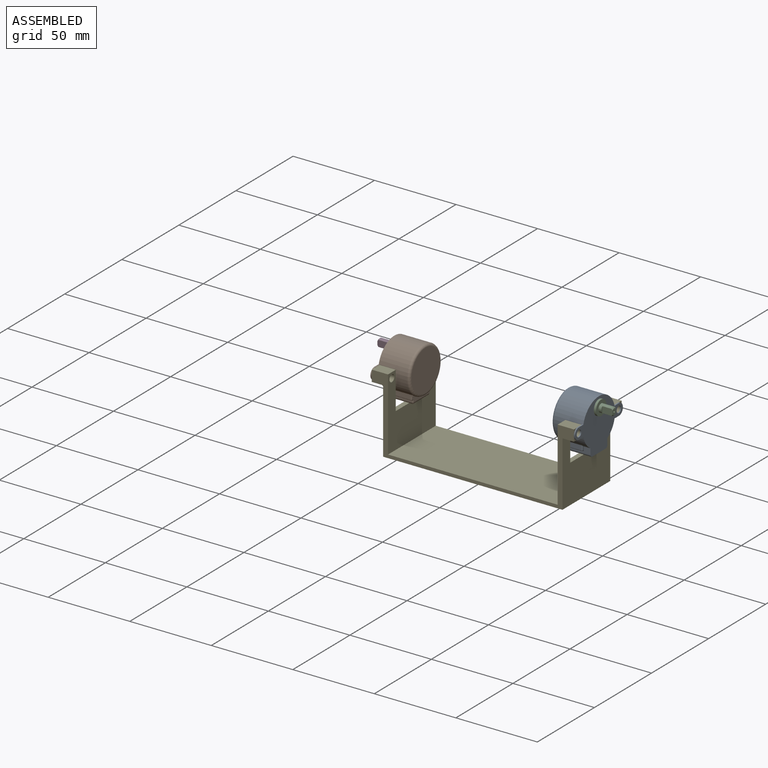
[diagram: assembled view]
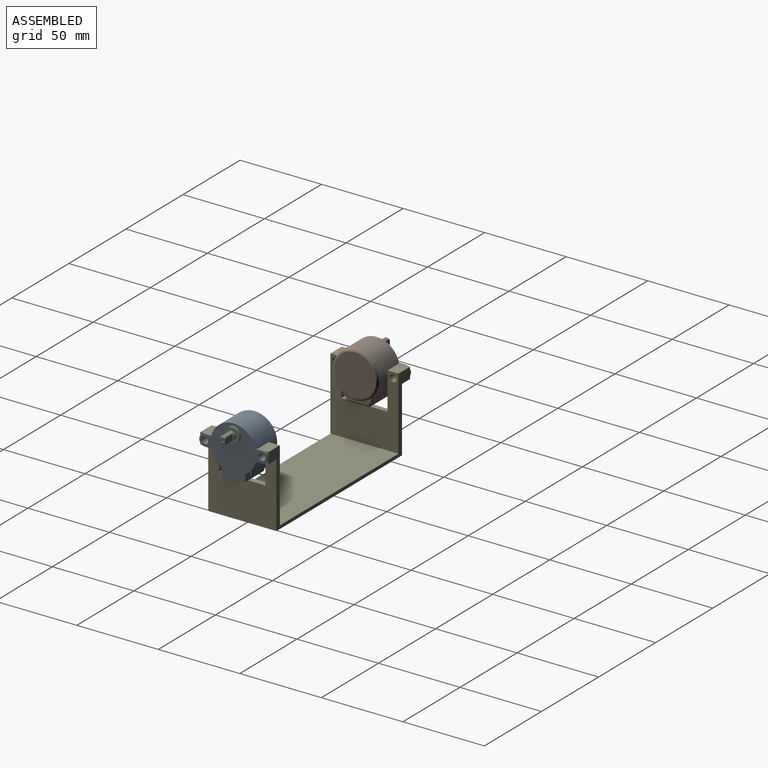
[diagram: assembled view, second angle]
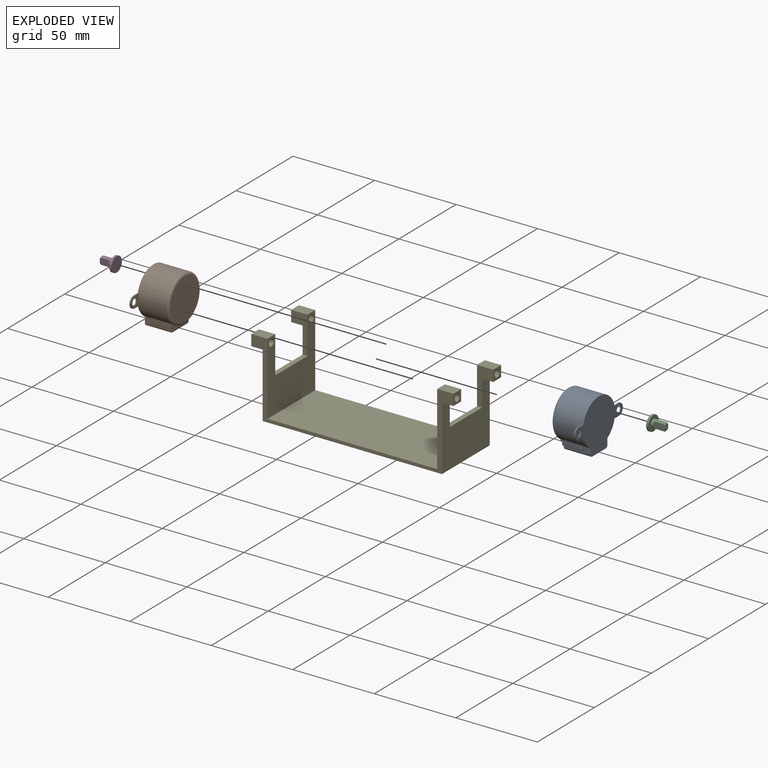
[diagram: exploded view]
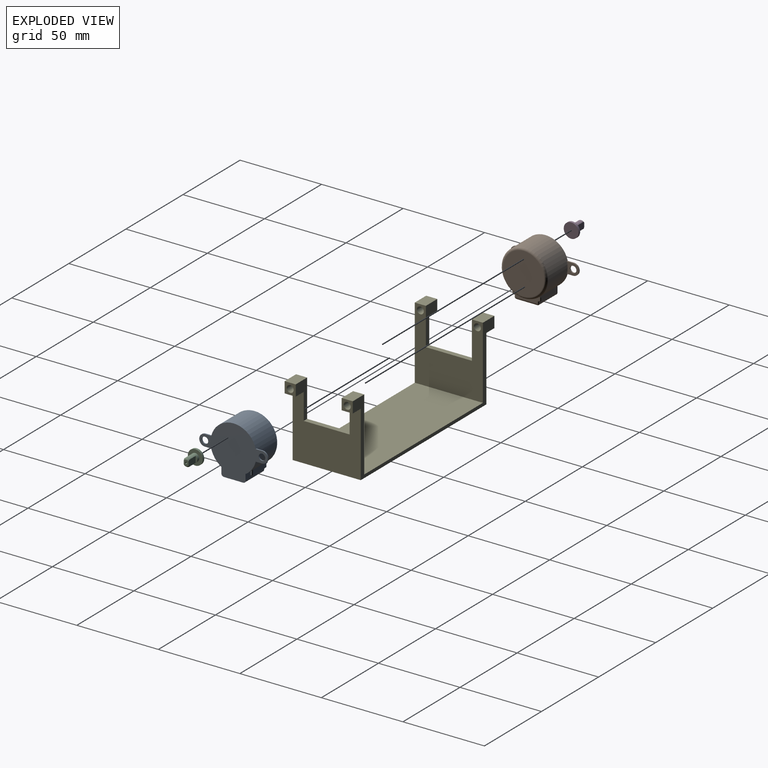
[diagram: exploded view, second angle]
ASSEMBLY  parts=5 mates=4
PART A: 56 faces, bbox 32.5x42x19.2 mm
  f0: plane 15.2x11.8mm, normal (1,0,0), area 169.8mm2, adj f14,f29,f30,f31,f51,f52,f53,f54
  f1: cylinder r=14.1mm len=28.2mm, axis (0,0,1), area 1244mm2, adj f2,f3,f4,f5,f6,f7,f8,f13
  f2: plane 16.5x3.36mm, normal (0,0,-1), area 25.3mm2, adj f1,f23,f24,f26,f27,f30,f37,f39
  f3: plane 16.2x3.7mm, normal (0,1,0), area 27.3mm2, adj f1,f14,f17,f18,f29,f33,f40
  f4: plane 3.84x0.75mm, normal (-1,0,0), area 2.9mm2, adj f1,f10,f13,f14
  f5: plane 3.84x0.75mm, normal (-1,0,0), area 2.9mm2, adj f1,f8,f9,f14
  f6: plane 3.84x0.75mm, normal (1,0,0), area 2.9mm2, adj f1,f10,f13,f14
  f7: plane 3.84x0.75mm, normal (1,0,0), area 2.9mm2, adj f1,f8,f9,f14
  f8: plane 7.34x7mm, normal (0,0,-1), area 31.5mm2, adj f1,f5,f7,f9,f12
  f9: cylinder r=3.5mm len=7mm, axis (0,0,1), area 8.2mm2, adj f5,f7,f8,f14
  f10: cylinder r=3.5mm len=7mm, axis (0,0,1), area 8.2mm2, adj f4,f6,f13,f14
  f11: cylinder r=2mm len=4mm, axis (0,0,1), area 9.4mm2, adj f13,f14
  f12: cylinder r=2mm len=4mm, axis (0,0,1), area 9.4mm2, adj f8,f14
  f13: plane 7.34x7mm, normal (0,0,-1), area 31.5mm2, adj f1,f4,f6,f10,f11
  f14: plane 42x31.3mm, normal (0,0,1), area 742.5mm2, adj f0,f1,f3,f4,f5,f6,f7,f9
  f15: plane 25.2x25.2mm, normal (0,0,-1), area 498.8mm2, adj f32
  f16: plane 16.2x3.7mm, normal (0,-1,0), area 27.3mm2, adj f1,f14,f20,f21,f31,f43,f49
  f17: plane 2.73x0.85mm, normal (0,0,1), area 1.9mm2, adj f1,f3,f33,f34
  f18: plane 11.6x1.02mm, normal (0.94,0.35,0), area 12.7mm2, adj f3,f33,f36,f39
  f19: plane 12.85x2.8mm, normal (0,1,0), area 33.6mm2, adj f1,f24,f25,f34,f36,f37
  f20: plane 2.73x0.85mm, normal (0,0,1), area 1.9mm2, adj f1,f16,f42,f43
  f21: plane 11.6x1.02mm, normal (0.94,-0.35,0), area 12.7mm2, adj f16,f43,f46,f48
  f22: plane 12.85x2.8mm, normal (0,-1,0), area 33.6mm2, adj f1,f26,f28,f42,f45,f46
  f23: plane 0.75x0.75mm, normal (0,-1,0), area 0.6mm2, adj f1,f2,f24,f25
  f24: cylinder r=14.85mm len=7.25mm, axis (0,0,1), area 6mm2, adj f2,f19,f23,f25,f37
  f25: plane 7.25x3.71mm, normal (0,0,-1), area 5.9mm2, adj f1,f19,f23,f24
  f26: cylinder r=14.85mm len=7.25mm, axis (0,0,1), area 6mm2, adj f2,f22,f27,f28,f45
  f27: plane 0.75x0.75mm, normal (0,1,0), area 0.6mm2, adj f1,f2,f26,f28
  f28: plane 7.25x3.71mm, normal (0,0,-1), area 5.9mm2, adj f1,f22,f26,f27
  f29: cylinder r=1.5mm len=16.2mm, axis (0,0,-1), area 37.3mm2, adj f0,f3,f14,f41
  f30: cylinder r=1.5mm len=13.8mm, axis (0,-1,0), area 30.8mm2, adj f0,f2,f41,f50
  f31: cylinder r=1.5mm len=16.2mm, axis (0,0,1), area 37.3mm2, adj f0,f14,f16,f50
  f32: torus R=12.6mm, axis (0,0,-1), area 200.7mm2, adj f1,f15
  f33: cylinder r=0.5mm len=1.2mm, axis (-0.35,0.94,0), area 0.8mm2, adj f3,f17,f18,f35
  f34: cylinder r=0.5mm len=2.8mm, axis (-1,0,0), area 2.1mm2, adj f1,f17,f19,f35
  f35: sphere r=0.5mm, area 0.3mm2, adj f33,f34,f36
  f36: cylinder r=0.5mm len=11.6mm, axis (0,0,-1), area 7.1mm2, adj f18,f19,f35,f38
  f37: cylinder r=0.5mm len=1.86mm, axis (-1,0,0), area 1.4mm2, adj f2,f19,f24,f38
  f38: sphere r=0.5mm, area 0.3mm2, adj f36,f37,f39
  f39: cylinder r=0.5mm len=1.52mm, axis (-0.35,0.94,0), area 1mm2, adj f2,f18,f38,f40
  f40: cylinder r=0.5mm len=1.35mm, axis (1,0,0), area 0.9mm2, adj f2,f3,f39,f41
  f41: bspline ~1.76x1.5mm, area 1.3mm2, adj f29,f30,f40
  f42: cylinder r=0.5mm len=2.8mm, axis (1,0,0), area 2.1mm2, adj f1,f20,f22,f44
  f43: cylinder r=0.5mm len=1.2mm, axis (0.35,0.94,0), area 0.8mm2, adj f16,f20,f21,f44
  f44: sphere r=0.5mm, area 0.3mm2, adj f42,f43,f46
  f45: cylinder r=0.5mm len=1.86mm, axis (1,0,0), area 1.4mm2, adj f2,f22,f26,f47
  f46: cylinder r=0.5mm len=11.6mm, axis (0,0,-1), area 7.1mm2, adj f21,f22,f44,f47
  f47: sphere r=0.5mm, area 0.3mm2, adj f45,f46,f48
  f48: cylinder r=0.5mm len=1.52mm, axis (0.35,0.94,0), area 1mm2, adj f2,f21,f47,f49
  f49: cylinder r=0.5mm len=1.35mm, axis (-1,0,0), area 0.9mm2, adj f2,f16,f48,f50
  f50: bspline ~1.76x1.5mm, area 1.3mm2, adj f30,f31,f49
  f51: plane 6.3x1mm, normal (0,0,1), area 6.3mm2, adj f0,f52,f54,f55
  f52: cylinder r=0.65mm len=1.3mm, axis (1,0,0), area 2mm2, adj f0,f51,f53,f55
  f53: plane 6.3x1mm, normal (0,0,-1), area 6.3mm2, adj f0,f52,f54,f55
  f54: cylinder r=0.65mm len=1.3mm, axis (1,0,0), area 2mm2, adj f0,f51,f53,f55
  f55: plane 7.6x1.3mm, normal (1,0,0), area 9.5mm2, adj f51,f52,f53,f54
PART B: same geometry as A
PART C: 12 faces, bbox 9.2x9.2x9.5 mm
  f0: cylinder r=2.45mm len=7.4mm, axis (0,0,-1), area 63.9mm2, adj f1,f2,f4,f8,f9,f10,f11
  f1: cone r=1.85mm half-angle=45deg, axis (0,0,-1), area 2.9mm2, adj f0,f3,f9,f11
  f2: cone r=1.85mm half-angle=45deg, axis (0,0,-1), area 2.9mm2, adj f0,f3,f9,f11
  f3: plane 3.7x3mm, normal (0,0,1), area 8.6mm2, adj f1,f2,f5,f9,f11
  f4: plane 9.1x9.1mm, normal (0,0,1), area 46.2mm2, adj f0,f7
  f5: cone r=0.6mm half-angle=45deg, axis (0,0,1), area 1.6mm2, adj f3
  f6: plane 9.1x9.1mm, normal (0,0,-1), area 65mm2, adj f7
  f7: cylinder r=4.55mm len=9.1mm, axis (0,0,-1), area 38.6mm2, adj f4,f6
  f8: plane 3.87x0.95mm, normal (0,0,1), area 2.6mm2, adj f0,f9
  f9: plane 6.31x3.98mm, normal (0,-1,0), area 23.5mm2, adj f0,f1,f2,f3,f8
  f10: plane 3.87x0.95mm, normal (0,0,1), area 2.6mm2, adj f0,f11
  f11: plane 6.31x3.98mm, normal (0,1,0), area 23.5mm2, adj f0,f1,f2,f3,f10
PART D: same geometry as C
PART E: 30 faces, bbox 124x41.8x46.4 mm
  f0: plane 44.4x41.8mm, normal (1,0,0), area 1181.1mm2, adj f1,f2,f4,f5,f8,f9,f10,f12
  f1: plane 10x6.8mm, normal (0,0,1), area 68mm2, adj f0,f2,f5,f6
  f2: plane 124x46.4mm, normal (0,-1,0), area 581.6mm2, adj f0,f1,f3,f6,f7,f14,f16,f17
  f3: plane 7x6.8mm, normal (0,0,-1), area 47.6mm2, adj f2,f5,f6,f7
  f4: cylinder r=2.15mm len=10mm, axis (-1,0,0), area 135.1mm2, adj f0,f6
  f5: plane 22.9x10mm, normal (0,1,0), area 116.3mm2, adj f0,f1,f3,f6,f7,f15
  f6: plane 6.8x6.8mm, normal (-1,0,0), area 31.7mm2, adj f1,f2,f3,f4,f5
  f7: plane 41.8x39.6mm, normal (-1,0,0), area 1201.3mm2, adj f2,f3,f5,f8,f10,f11,f14,f15
  f8: plane 124x46.4mm, normal (0,1,0), area 581.6mm2, adj f0,f7,f9,f11,f13,f14,f16,f17
  f9: plane 10x6.8mm, normal (0,0,1), area 68mm2, adj f0,f8,f10,f13
  f10: plane 22.9x10mm, normal (0,-1,0), area 116.3mm2, adj f0,f7,f9,f11,f13,f15
  f11: plane 7x6.8mm, normal (0,0,-1), area 47.6mm2, adj f7,f8,f10,f13
  f12: cylinder r=2.15mm len=10mm, axis (-1,0,0), area 135.1mm2, adj f0,f13
  f13: plane 6.8x6.8mm, normal (-1,0,0), area 31.7mm2, adj f8,f9,f10,f11,f12
  f14: plane 110x41.8mm, normal (0,0,-1), area 4598mm2, adj f2,f7,f8,f23
  f15: plane 28.2x3mm, normal (0,0,1), area 84.6mm2, adj f0,f5,f7,f10
  f16: plane 104x41.8mm, normal (0,0,1), area 4347.2mm2, adj f0,f2,f8,f17
  f17: plane 44.4x41.8mm, normal (-1,0,0), area 1181.1mm2, adj f2,f8,f16,f18,f20,f21,f24,f25
  f18: plane 10x6.8mm, normal (0,0,1), area 68mm2, adj f2,f17,f21,f22
  f19: plane 7x6.8mm, normal (0,0,-1), area 47.6mm2, adj f2,f21,f22,f23
  f20: cylinder r=2.15mm len=10mm, axis (1,0,0), area 135.1mm2, adj f17,f22
  f21: plane 22.9x10mm, normal (0,1,0), area 116.3mm2, adj f17,f18,f19,f22,f23,f29
  f22: plane 6.8x6.8mm, normal (1,0,0), area 31.7mm2, adj f2,f18,f19,f20,f21
  f23: plane 41.8x39.6mm, normal (1,0,0), area 1201.3mm2, adj f2,f8,f14,f19,f21,f25,f26,f29
  f24: plane 10x6.8mm, normal (0,0,1), area 68mm2, adj f8,f17,f25,f28
  f25: plane 22.9x10mm, normal (0,-1,0), area 116.3mm2, adj f17,f23,f24,f26,f28,f29
  f26: plane 7x6.8mm, normal (0,0,-1), area 47.6mm2, adj f8,f23,f25,f28
  f27: cylinder r=2.15mm len=10mm, axis (1,0,0), area 135.1mm2, adj f17,f28
  f28: plane 6.8x6.8mm, normal (1,0,0), area 31.7mm2, adj f8,f24,f25,f26,f27
  f29: plane 28.2x3mm, normal (0,0,1), area 84.6mm2, adj f17,f21,f23,f25
PLACE A rot(axis=(0,1,0),90deg) t=(62.75,0,50.85)mm
PLACE B rot(axis=(-0.71,0,0.71),180deg) t=(-62.75,0,50.85)mm
PLACE C rot(axis=(0,1,0),90deg) t=(62.75,0,51)mm
PLACE D rot(axis=(-0.71,0,0.71),180deg) t=(-62.75,0,51)mm
PLACE E at identity
MATE fastened C.f0 <-> A.f14  axis (-1,0,0) through (62.75,0,51)mm
MATE fastened D.f0 <-> B.f14  axis (1,0,0) through (-62.75,0,51)mm
MATE fastened B.f9 <-> E.f12  axis (1,0,0) through (-62,17.5,43)mm
MATE fastened A.f10 <-> E.f12  axis (-1,0,0) through (62,17.5,43)mm
